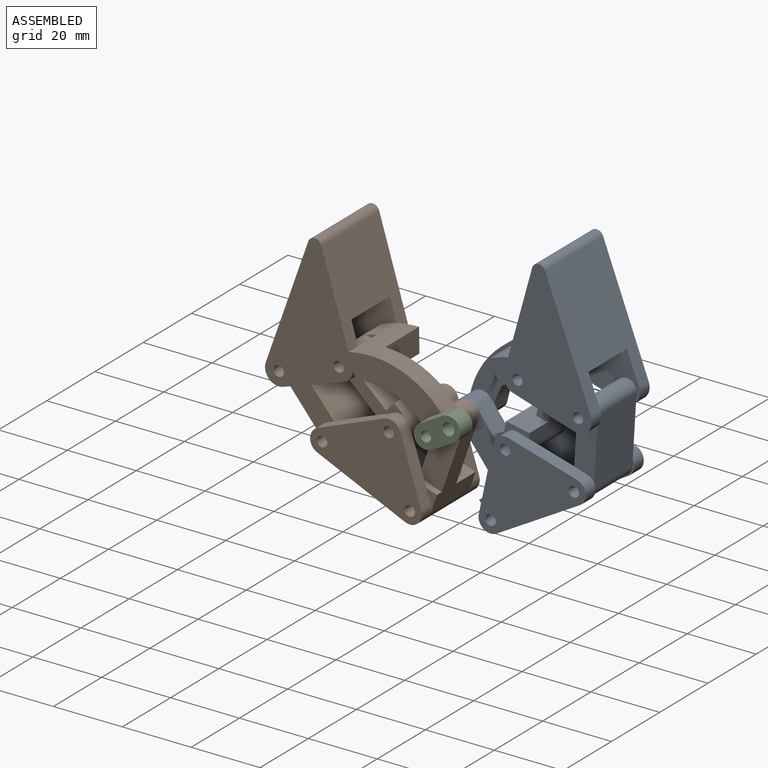
[diagram: assembled view]
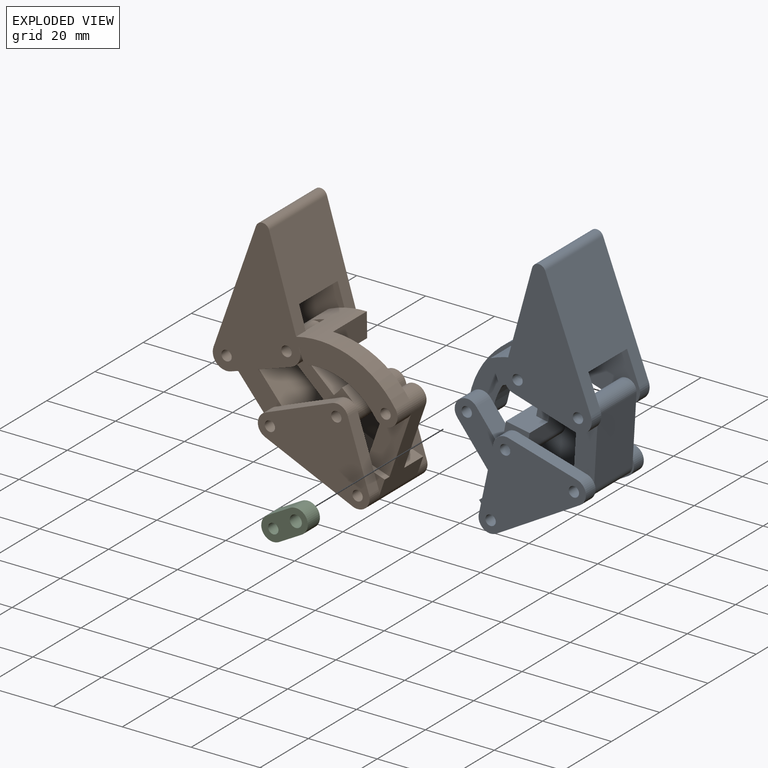
[diagram: exploded view]
GUIDED TOUR — MATED ASSEMBLY WITH SUBASSEMBLIES (Onshape document ed50da4fc6db5b4f06c21525, AutoMate assembly ed50da4fc6db5b4f06c21525_7710ae978911b2642eab048f_40d3b34588bcea5de6abf62f_default)

This assembly has 13 component occurrences arranged in 3 top-level units: 1 individual components plus 2 subassemblies (S0, S1). The tour has two levels: first the top level, where each subassembly is treated as one rigid unit; then each subassembly is toured internally in its own section (nesting deeper than one subassembly level is flattened into its subassembly's section).

Components are labeled P0..P12 across the whole record; subassembly units are labeled S0..S1. A mate is a constraint between two units; its type names the relative motion it leaves free:
  REVOLUTE — leaves rotation about the listed axis free (a hinge).
Axis/direction vectors are unit vectors and 'through' points are millimeter coordinates, both in the assembly's world frame.

TOP-LEVEL MATES (between units; each subassembly's internal mates are listed in its own section)
  1. REVOLUTE "轉動 1": S0 <-> S1, axis (0.000, -1.000, 0.000) through (41.17, 1.14, -53.42) mm
  2. REVOLUTE "轉動 2": P6 <-> S1, axis (0.000, 1.000, 0.000) through (41.17, -10.86, -53.42) mm

TOP-LEVEL ASSEMBLY ORDER
  1. S0 — the base component [order verified]
  2. S1 [order verified]
  3. P6 [order verified]
Order-tag legend:
  [order verified] — this step's position reverses a verified removal order: the component was checked to insert without passing through the ones already placed.

Of the 13 component occurrences, 4 carry the full construction recipe — the FeatureScript program that regenerates the part's solid from scratch; the rest are supplied as boundary geometry only. Each toured unit is shown spotlighted twice — assembled, then exploded with a leader line back to its socket (green = recipe-attached component, orange = geometry-only, blue = subassembly unit; the rest desaturated gray).
NOTE — this tour is split across 2 documents so each fits a 32k-token context. This is document 1: the component sections continue in the remaining 1 document, each repeating the header above.
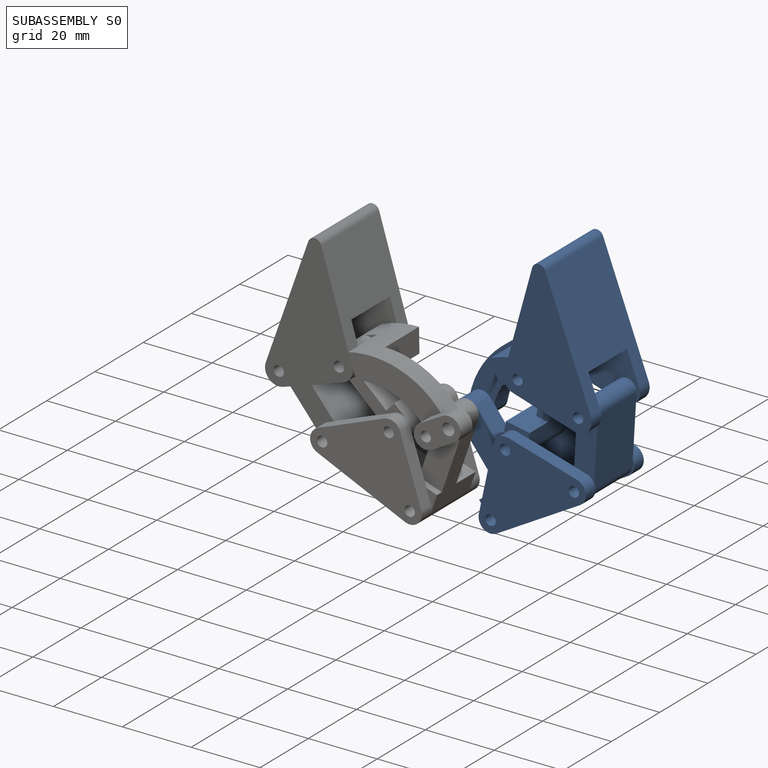
[diagram: subassembly S0 — assembled]
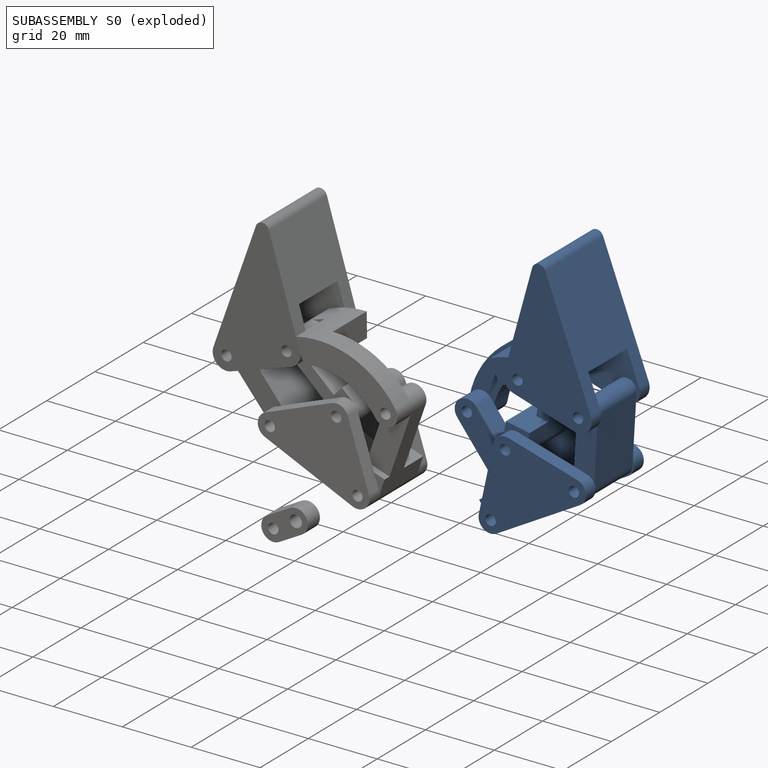
[diagram: subassembly S0 — exploded]
SUBASSEMBLY S0 — 6 components (P0, P1, P4, P5, P7, P11), of which 2 recipe-attached; toured below.
Held by: REVOLUTE mate "轉動 1" to S1.
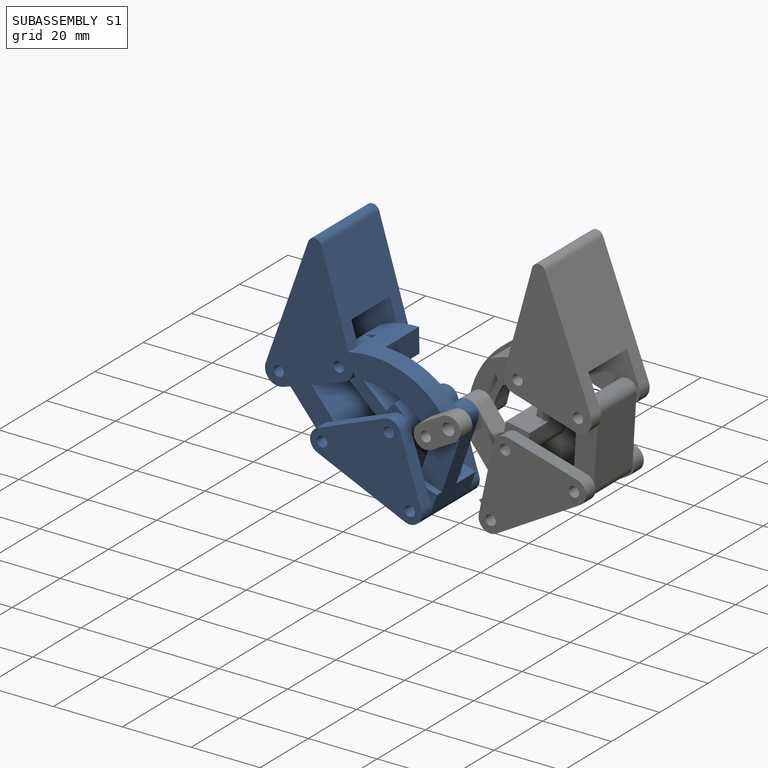
[diagram: subassembly S1 — assembled]
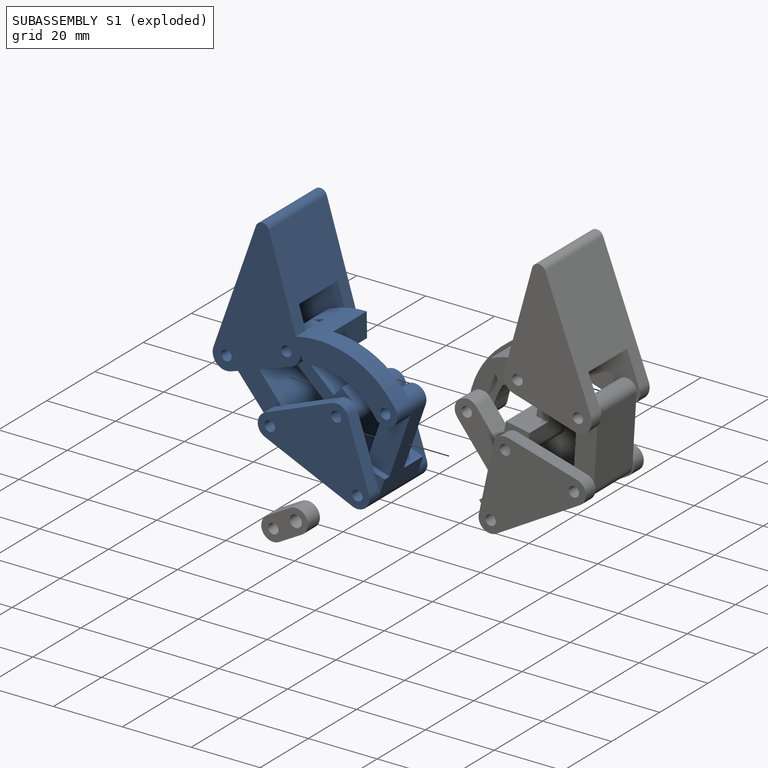
[diagram: subassembly S1 — exploded]
SUBASSEMBLY S1 — 6 components (P2, P3, P8, P9, P10, P12), of which 2 recipe-attached; toured below.
Held by: REVOLUTE mate "轉動 1" to S0; REVOLUTE mate "轉動 2" to P6.
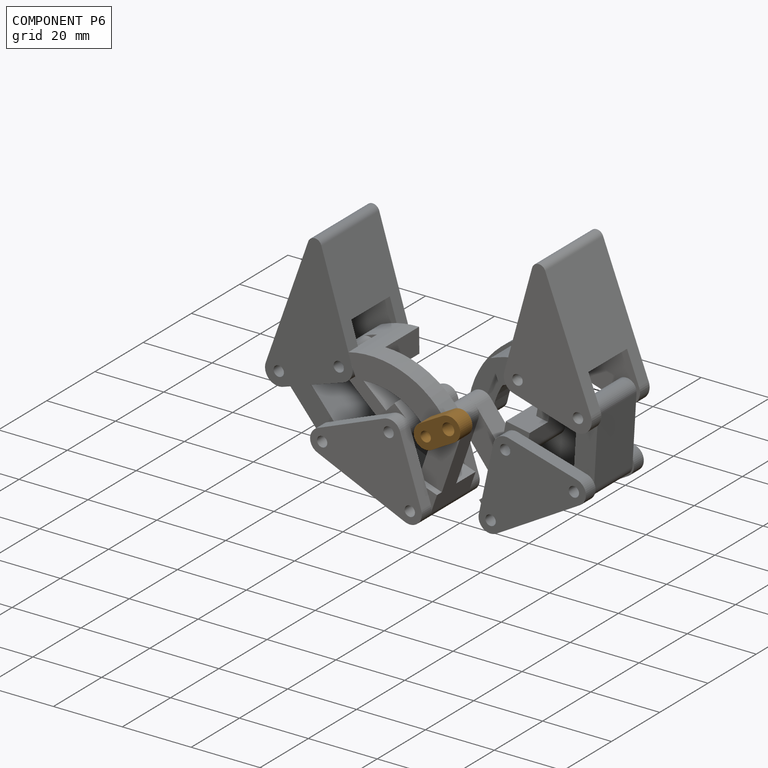
[diagram: component P6 — assembled]
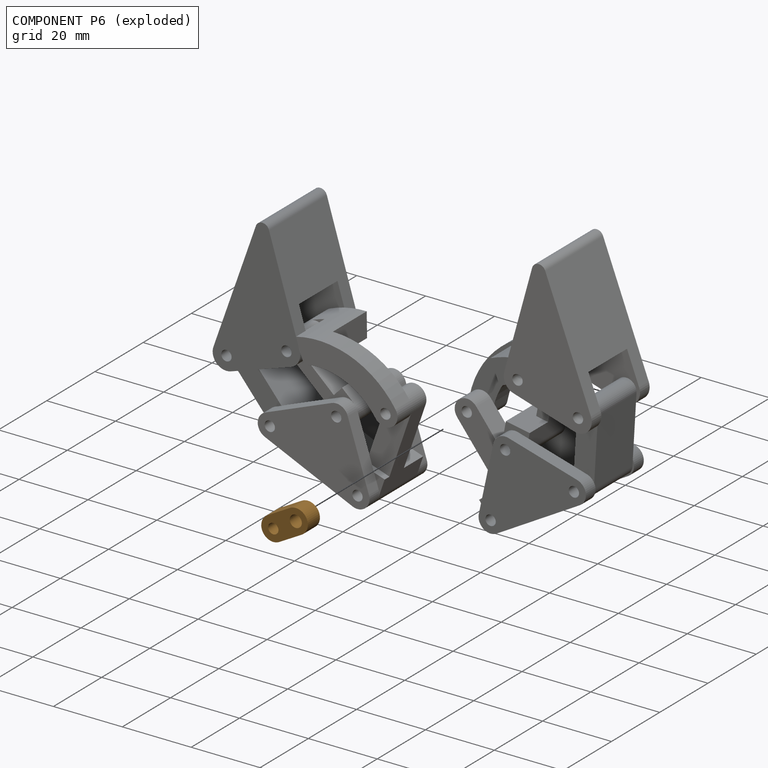
[diagram: component P6 — exploded]
COMPONENT P6 — geometry summary (no construction recipe available for this part):
  bounding box: 14.5 x 7.0 x 5.0 mm
  B-rep topology: 1 solid, 8 faces, 36 edges
  volume: 371 mm^3 (73% of its bounding box)
  symmetry: 2-fold rotationally symmetric about the x axis; mirror-symmetric across its y mid-plane, z mid-plane
Held by: REVOLUTE mate "轉動 2" to P2.
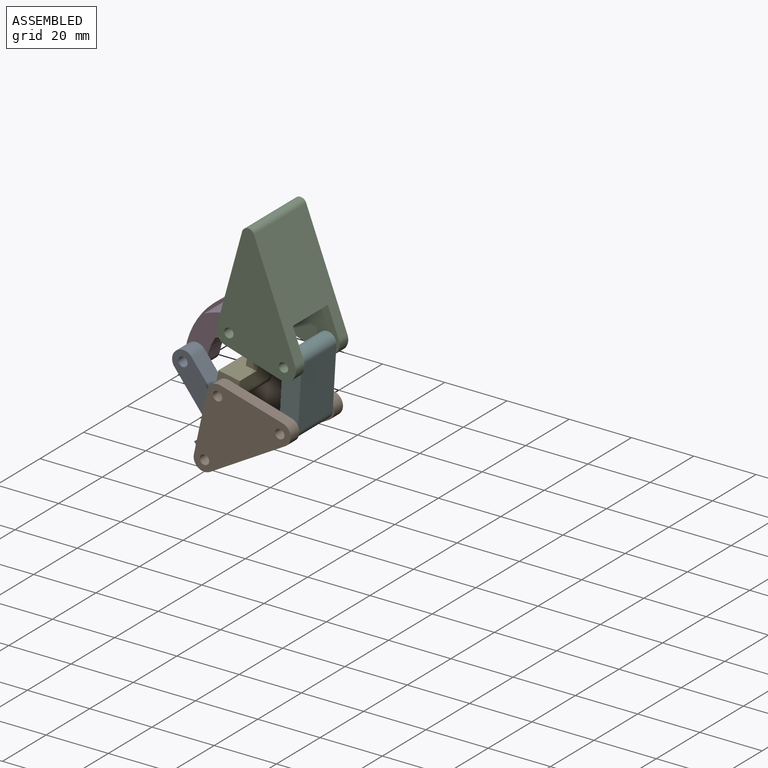
[diagram: subassembly S0 — assembled view]
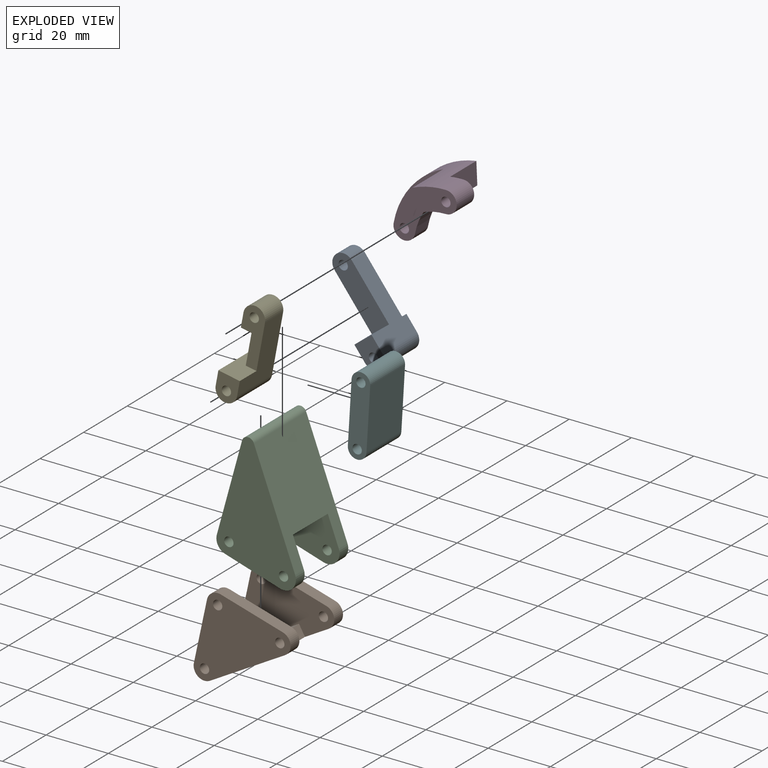
[diagram: subassembly S0 — exploded view]
SUBASSEMBLY S0 TOUR — 6 components, shown here in isolation at its own camera.

INTERNAL MATES
  1. REVOLUTE "轉動 2": P11 <-> P1, axis (0.000, 1.000, 0.000) through (80.68, 9.14, -59.24) mm
  2. REVOLUTE "轉動 3": P0 <-> P1, axis (0.000, 1.000, 0.000) through (56.50, -6.86, -73.17) mm
  3. REVOLUTE "轉動 6": P5 <-> P4, axis (0.000, -1.000, 0.000) through (64.31, -6.86, -34.25) mm
  4. REVOLUTE "轉動 1": P4 <-> P7, axis (0.000, -1.000, 0.000) through (64.31, 9.14, -34.25) mm
  5. REVOLUTE "轉動 5": P7 <-> P1, axis (0.000, -1.000, 0.000) through (60.72, -6.86, -53.57) mm
  6. REVOLUTE "轉動 7": P0 <-> P5, axis (0.000, 1.000, 0.000) through (41.17, 7.14, -53.42) mm
  7. REVOLUTE "轉動 4": P4 <-> P11, axis (0.000, -1.000, 0.000) through (81.87, 9.14, -39.58) mm

ASSEMBLY ORDER (within the subassembly)
  1. P7 — the base component [order verified]
  2. P5 [order verified]
  3. P4 [order verified]
  4. P11 [order verified]
  5. P1 [order verified]
  6. P0 [order verified]
Order-tag legend:
  [order verified] — this step's position reverses a verified removal order: the component was checked to insert without passing through the ones already placed.
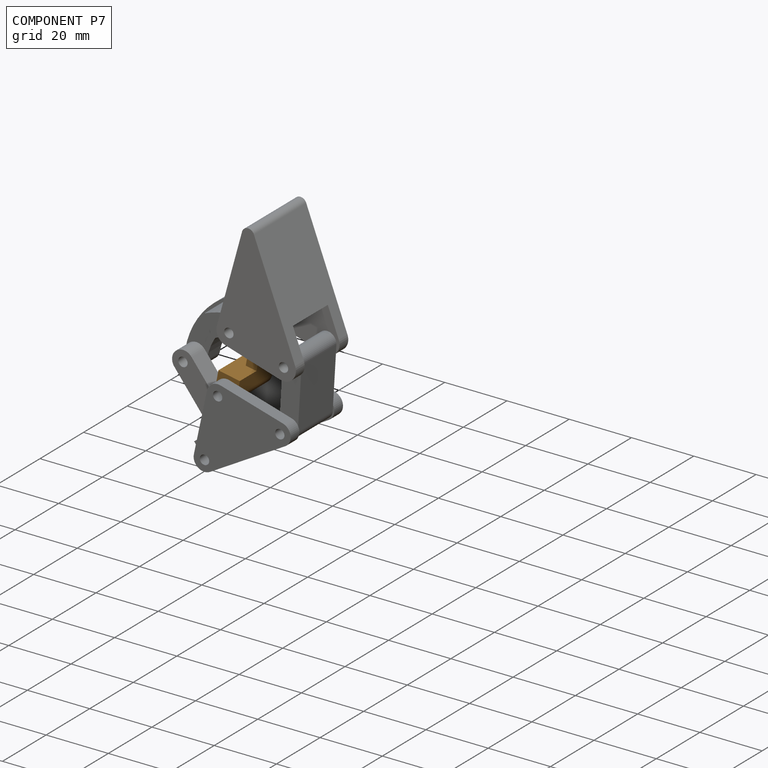
[diagram: component P7 — assembled]
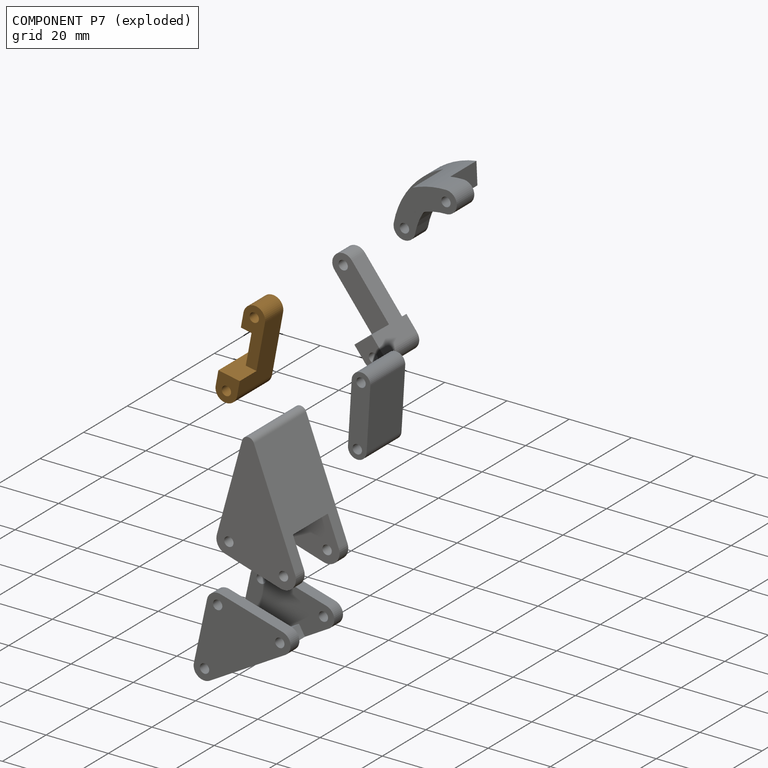
[diagram: component P7 — exploded]
COMPONENT P7 — geometry summary (no construction recipe available for this part):
  bounding box: 26.7 x 16.0 x 7.0 mm
  B-rep topology: 1 solid, 13 faces, 68 edges
  volume: 1402 mm^3 (47% of its bounding box)
Held by: REVOLUTE mate "轉動 1" to P4; REVOLUTE mate "轉動 5" to P1.
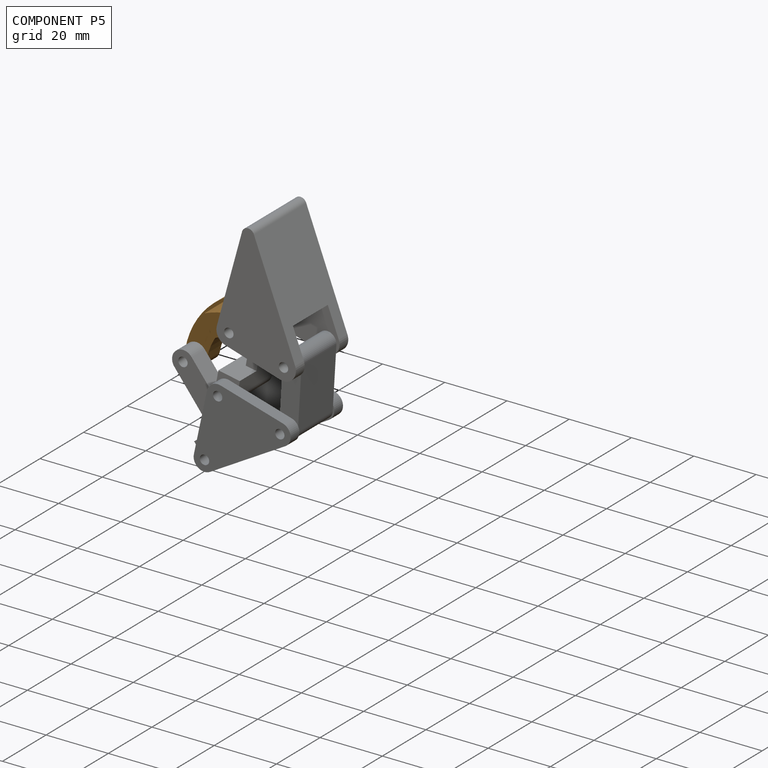
[diagram: component P5 — assembled]
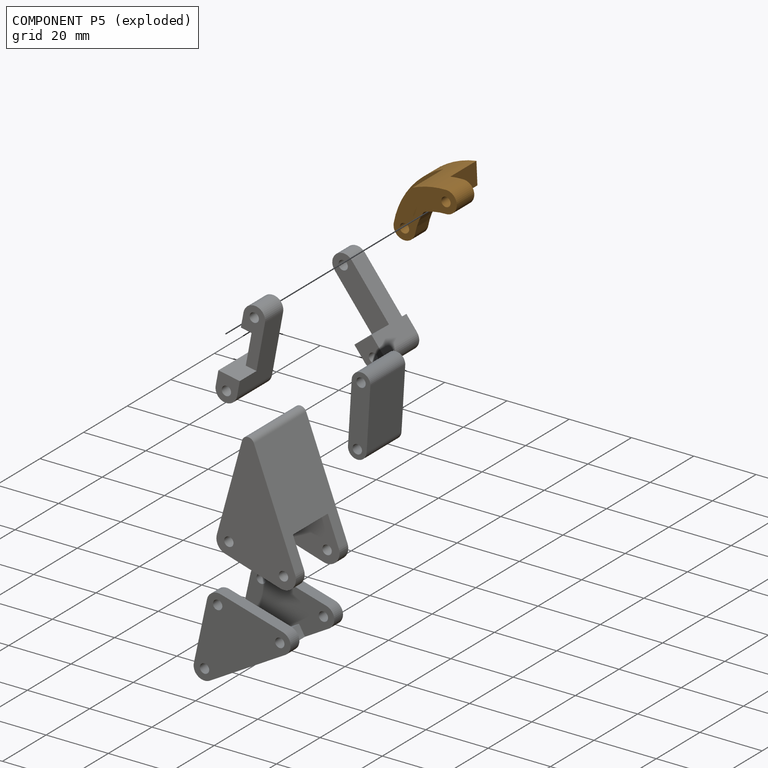
[diagram: component P5 — exploded]
COMPONENT P5 — geometry summary (no construction recipe available for this part):
  bounding box: 37.1 x 20.0 x 12.4 mm
  B-rep topology: 1 solid, 12 faces, 64 edges
  volume: 2139 mm^3 (23% of its bounding box)
Held by: REVOLUTE mate "轉動 6" to P4; REVOLUTE mate "轉動 7" to P0.
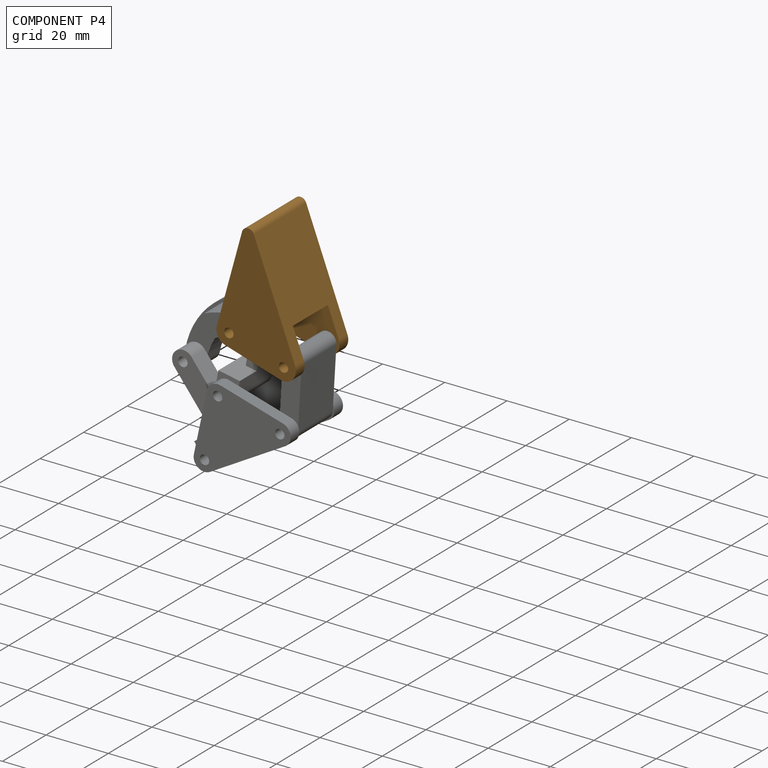
[diagram: component P4 — assembled]
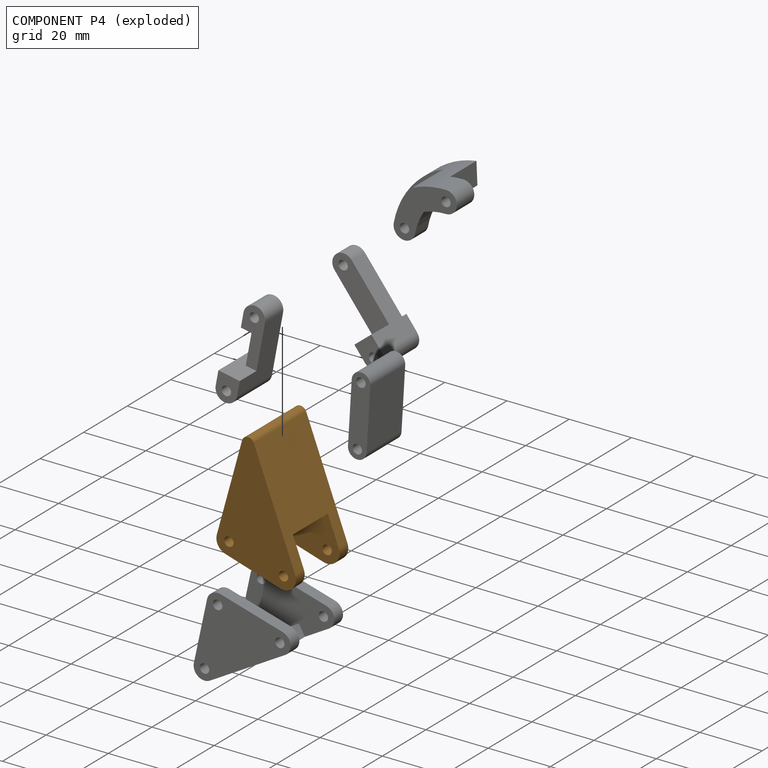
[diagram: component P4 — exploded]
COMPONENT P4 — geometry summary (no construction recipe available for this part):
  bounding box: 36.5 x 27.2 x 24.0 mm
  B-rep topology: 1 solid, 18 faces, 104 edges
  volume: 8675 mm^3 (36% of its bounding box)
  symmetry: mirror-symmetric across its y mid-plane
Held by: REVOLUTE mate "轉動 6" to P5; REVOLUTE mate "轉動 1" to P7; REVOLUTE mate "轉動 4" to P11.
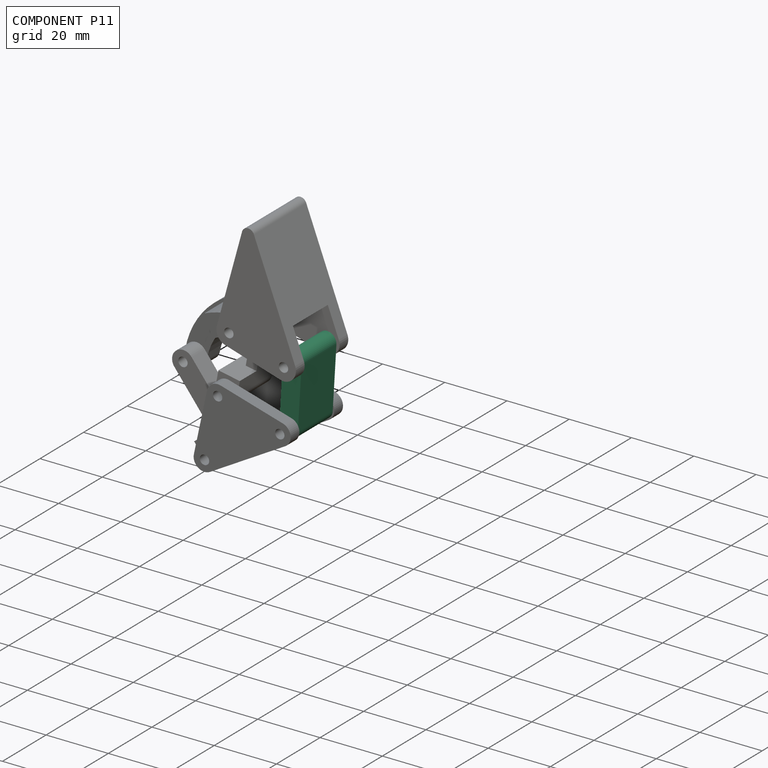
[diagram: component P11 — assembled]
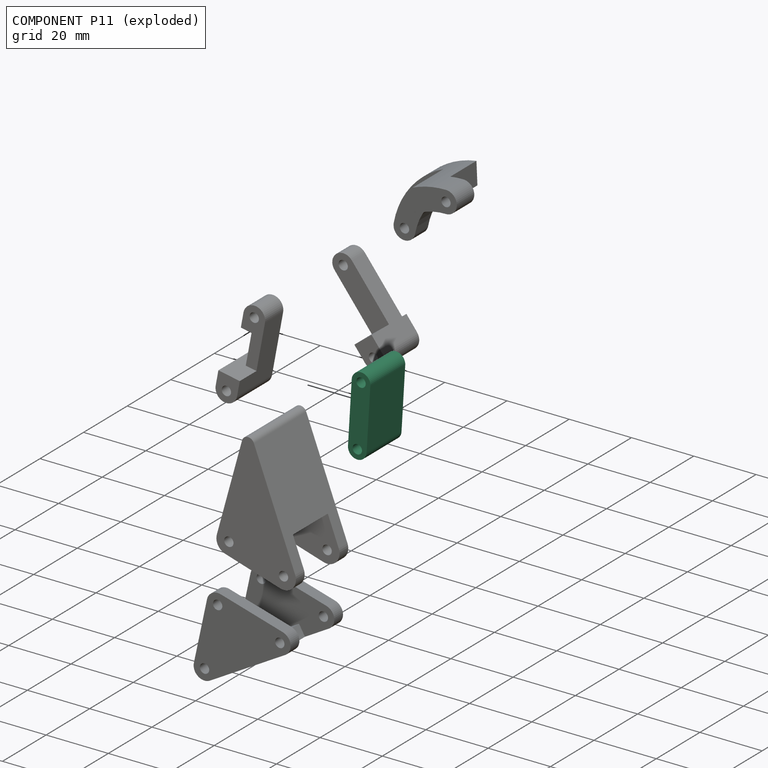
[diagram: component P11 — exploded]
COMPONENT P11 — recipe-attached (CADFS 00900202, mesh-verified: the recipe's output STEP matches this component's geometry to below the mesh-comparison resolution (tessellation chordal tolerance ~0.0463 mm)).
Held by: REVOLUTE mate "轉動 2" to P1; REVOLUTE mate "轉動 4" to P4.
Construction recipe (FeatureScript — the CAD program that rebuilds this solid; sketch coordinates are in the units given by the * unit suffixes, e.g. mm):

FeatureScript 1511;
import(path : "onshape/std/geometry.fs", version : "1511.0");
import(path : "onshape/std/common.fs", version : "1511.0");
const mm = millimeter;
const VERTEX = EntityType.VERTEX;
const EDGE = EntityType.EDGE;
const FACE = EntityType.FACE;
const BODY = EntityType.BODY;
function v(x, y){return vector(x, y);}
function OD(order){return orderDisambiguation(order);}
function OSD(set){return originalSetDisambiguation(set);}
function TD(topology){return topologyDisambiguation(topology);}
function TDD(query){return trueDependencyDisambiguation(query);}
function sQuery(a, b, c) {return sketchEntityQuery(a, b, c);}

annotation { "Feature Type Name" : "Feature", "Feature Type Description" : "" }
export const myFeature = defineFeature(function(context is Context, id is Id, definition is map)
    precondition{}
    {
        {
            var Q0;
            Q0=qCreatedBy(makeId("Front.planeOp"),FACE);
            var sketch = newSketch(context, id + "F0", { "sketchPlane" : qUnion([Q0])});
            skLineSegment(sketch, "E0", {"start": v(-9.85, 0) * mm, "end": v(9.85, 0) * mm});
            skCircle(sketch, "E1", {"center": v(9.85, 0) * mm, "radius": 1.5 * mm});
            skCircle(sketch, "E2", {"center": v(-9.85, 0) * mm, "radius": 1.5 * mm});
            skPoint(sketch, "E3.visualSharp", {"position": v(-66.12, -69.63) * mm});
            skArc(sketch, "E3.filletArc", {"start": v(-51.94, -37.1) * mm, "mid": v(-52.74, -38.3) * mm, "end": v(-51.92, -39.49) * mm});
            skArc(sketch, "E4", {"start": v(-9.85, 3) * mm, "mid": v(-12.85, 0) * mm, "end": v(-9.85, -3) * mm});
            skArc(sketch, "E5", {"start": v(9.85, -3) * mm, "mid": v(12.85, 0) * mm, "end": v(9.85, 3) * mm});
            skLineSegment(sketch, "E6", {"start": v(9.85, 3) * mm, "end": v(-9.85, 3) * mm});
            skLineSegment(sketch, "E7", {"start": v(-9.85, -3) * mm, "end": v(9.85, -3) * mm});
            skSolve(sketch);
        }
        {
            var Q0;
            Q0 = qSketchRegion(id + "F0", true);
            extrude(context, id + "F1", {"entities" : qUnion([Q0]), "endBound" : BoundingType.SYMMETRIC, "depth" : 16 * mm, "offsetDistance" : 25.4 * mm});
        }
    });
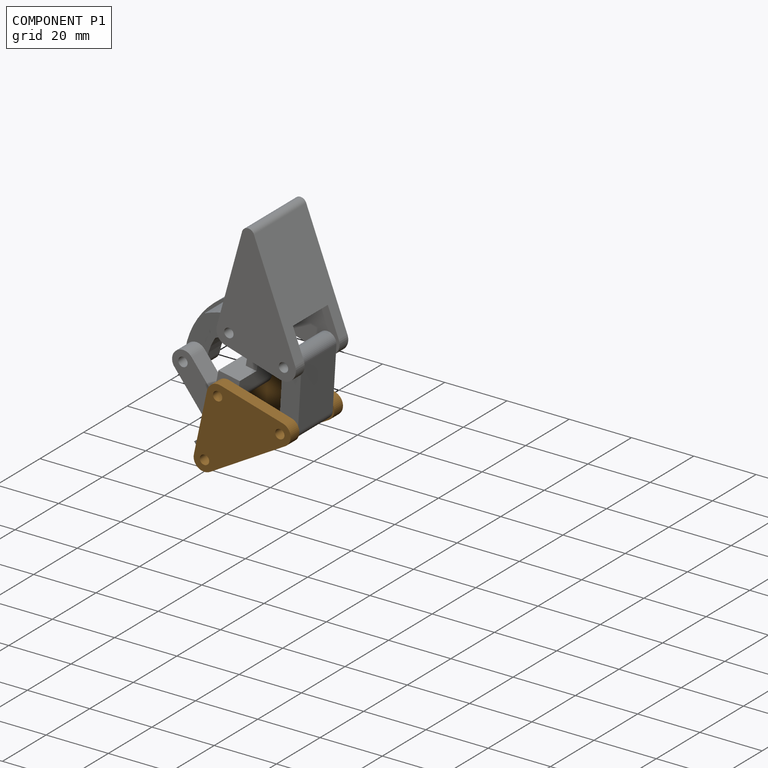
[diagram: component P1 — assembled]
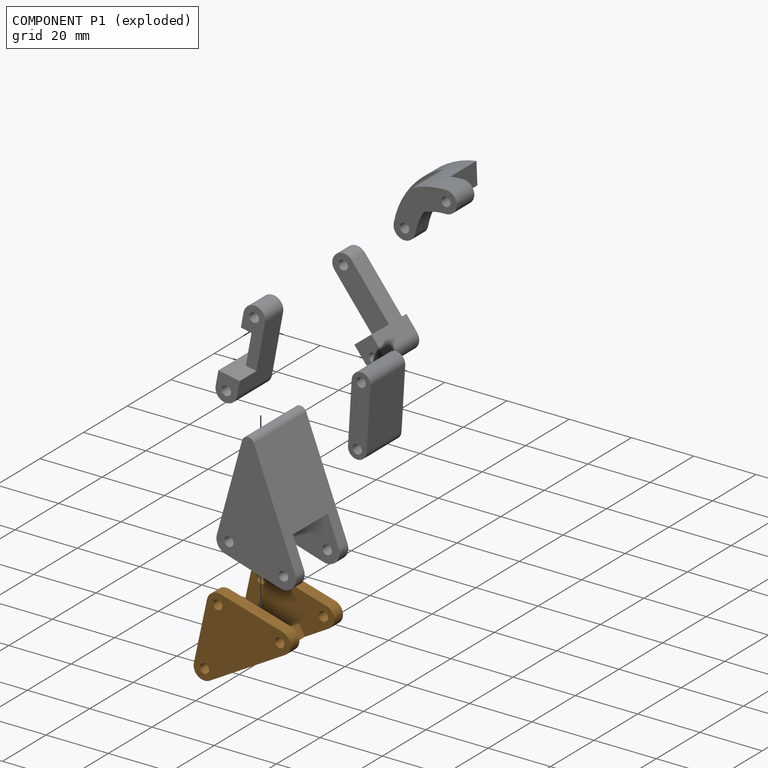
[diagram: component P1 — exploded]
COMPONENT P1 — geometry summary (no construction recipe available for this part):
  bounding box: 27.7 x 27.1 x 24.0 mm
  B-rep topology: 1 solid, 24 faces, 144 edges
  volume: 4419 mm^3 (25% of its bounding box)
  symmetry: mirror-symmetric across its y mid-plane
Held by: REVOLUTE mate "轉動 2" to P11; REVOLUTE mate "轉動 3" to P0; REVOLUTE mate "轉動 5" to P7.
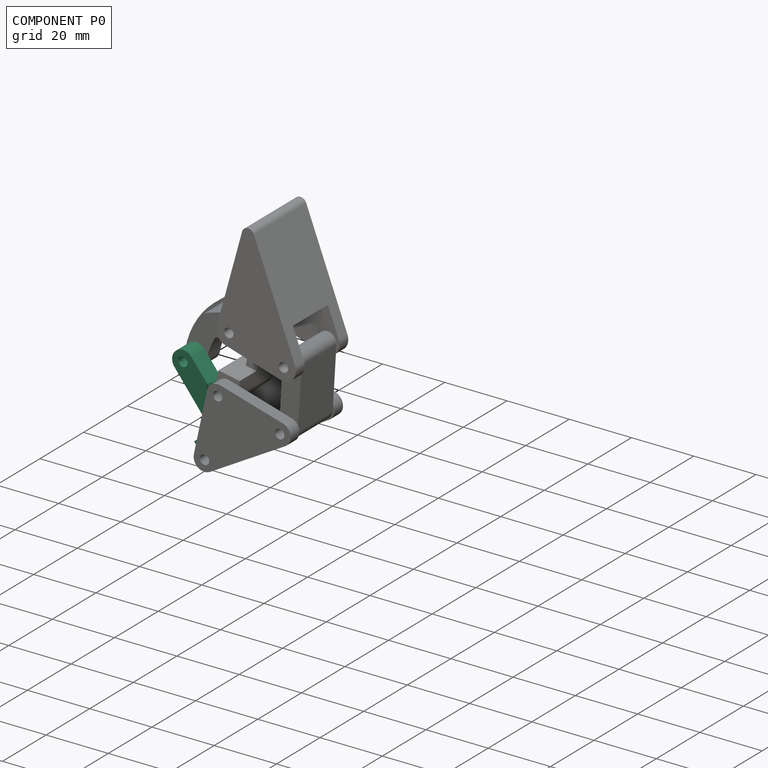
[diagram: component P0 — assembled]
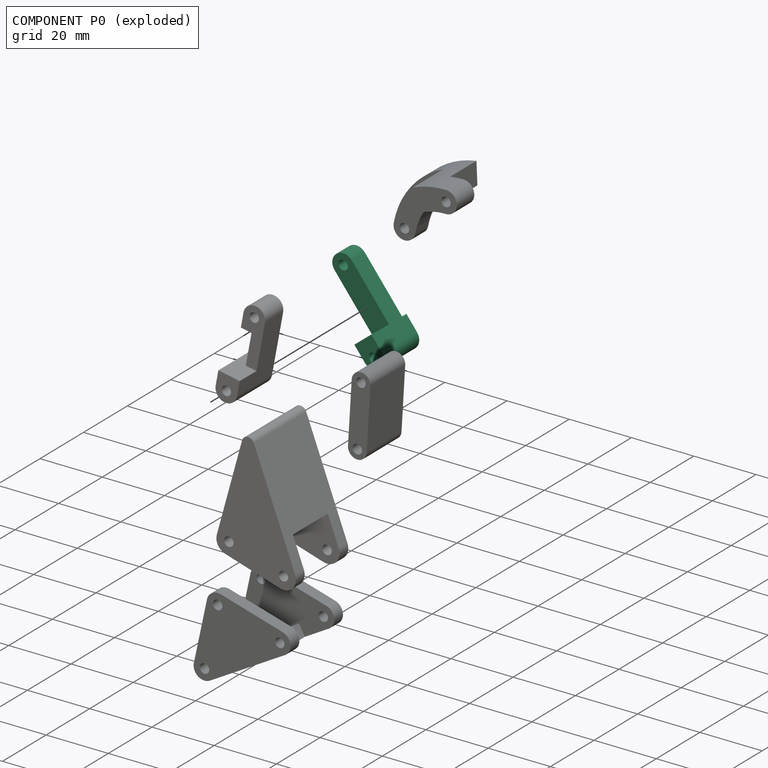
[diagram: component P0 — exploded]
COMPONENT P0 — recipe-attached (CADFS 00900207, mesh-verified: the recipe's output STEP matches this component's geometry to below the mesh-comparison resolution (tessellation chordal tolerance ~0.0547 mm)).
Held by: REVOLUTE mate "轉動 3" to P1; REVOLUTE mate "轉動 7" to P5.
Construction recipe (FeatureScript — the CAD program that rebuilds this solid; sketch coordinates are in the units given by the * unit suffixes, e.g. mm):

FeatureScript 1511;
import(path : "onshape/std/geometry.fs", version : "1511.0");
import(path : "onshape/std/common.fs", version : "1511.0");
const mm = millimeter;
const VERTEX = EntityType.VERTEX;
const EDGE = EntityType.EDGE;
const FACE = EntityType.FACE;
const BODY = EntityType.BODY;
function v(x, y){return vector(x, y);}
function OD(order){return orderDisambiguation(order);}
function OSD(set){return originalSetDisambiguation(set);}
function TD(topology){return topologyDisambiguation(topology);}
function TDD(query){return trueDependencyDisambiguation(query);}
function sQuery(a, b, c) {return sketchEntityQuery(a, b, c);}

annotation { "Feature Type Name" : "Feature", "Feature Type Description" : "" }
export const myFeature = defineFeature(function(context is Context, id is Id, definition is map)
    precondition{}
    {
        {
            var Q0;
            Q0=qCreatedBy(makeId("Front.planeOp"),FACE);
            var sketch = newSketch(context, id + "F0", { "sketchPlane" : qUnion([Q0])});
            skLineSegment(sketch, "E0", {"start": v(-12.5, 0) * mm, "end": v(12.5, 0) * mm});
            skArc(sketch, "E1", {"start": v(-12.5, 3.5) * mm, "mid": v(-16, 0) * mm, "end": v(-12.5, -3.5) * mm});
            skArc(sketch, "E2", {"start": v(12.5, -3.5) * mm, "mid": v(16, 0) * mm, "end": v(12.5, 3.5) * mm});
            skLineSegment(sketch, "E3", {"start": v(12.5, 3.5) * mm, "end": v(-12.5, 3.5) * mm});
            skLineSegment(sketch, "E4", {"start": v(-12.5, -3.5) * mm, "end": v(12.5, -3.5) * mm});
            skCircle(sketch, "E5", {"center": v(-12.5, 0) * mm, "radius": 1.5 * mm});
            skCircle(sketch, "E6", {"center": v(12.5, 0) * mm, "radius": 1.5 * mm});
            skSolve(sketch);
        }
        {
            var Q0;
            Q0 = qSketchRegion(id + "F0", true);
            extrude(context, id + "F1", {"entities" : qUnion([Q0]), "endBound" : BoundingType.SYMMETRIC, "depth" : 16 * mm, "offsetDistance" : 25.4 * mm});
        }
        {
            var Q0;
            Q0=makeQuery(id+"F1.opExtrude","SWEPT_FACE",FACE,{"disambiguationData":[OSD([sQuery(id+"F0.wireOp",EDGE,"E3")])]});
            var sketch = newSketch(context, id + "F2", { "sketchPlane" : qUnion([Q0])});
            skLineSegment(sketch, "E7.bottom", {"start": v(33.74, 21.66) * mm, "end": v(-7, 21.66) * mm});
            skLineSegment(sketch, "E7.top", {"start": v(33.74, 6) * mm, "end": v(-7, 6) * mm});
            skLineSegment(sketch, "E7.left", {"start": v(33.74, 21.66) * mm, "end": v(33.74, 6) * mm});
            skLineSegment(sketch, "E7.right", {"start": v(-7, 21.66) * mm, "end": v(-7, 6) * mm});
            skLineSegment(sketch, "E8.bottom", {"start": v(38.29, -22.4) * mm, "end": v(-7, -22.4) * mm});
            skLineSegment(sketch, "E8.top", {"start": v(38.29, 0) * mm, "end": v(-7, 0) * mm});
            skLineSegment(sketch, "E8.left", {"start": v(38.29, -22.4) * mm, "end": v(38.29, 0) * mm});
            skLineSegment(sketch, "E8.right", {"start": v(-7, -22.4) * mm, "end": v(-7, 0) * mm});
            skSolve(sketch);
        }
        {
            var Q0;
            Q0 = qSketchRegion(id + "F2", true);
            extrude(context, id + "F3", {"entities" : qUnion([Q0]), "operationType" : NewBodyOperationType.REMOVE, "oppositeDirection" : true, "depth" : 25.4 * mm, "offsetDistance" : 25.4 * mm});
        }
    });
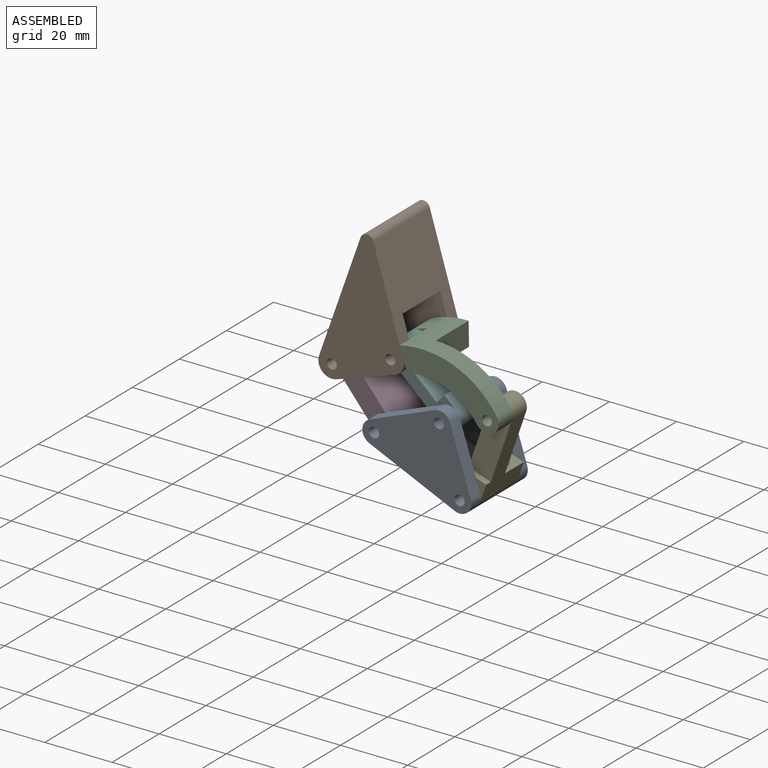
[diagram: subassembly S1 — assembled view]
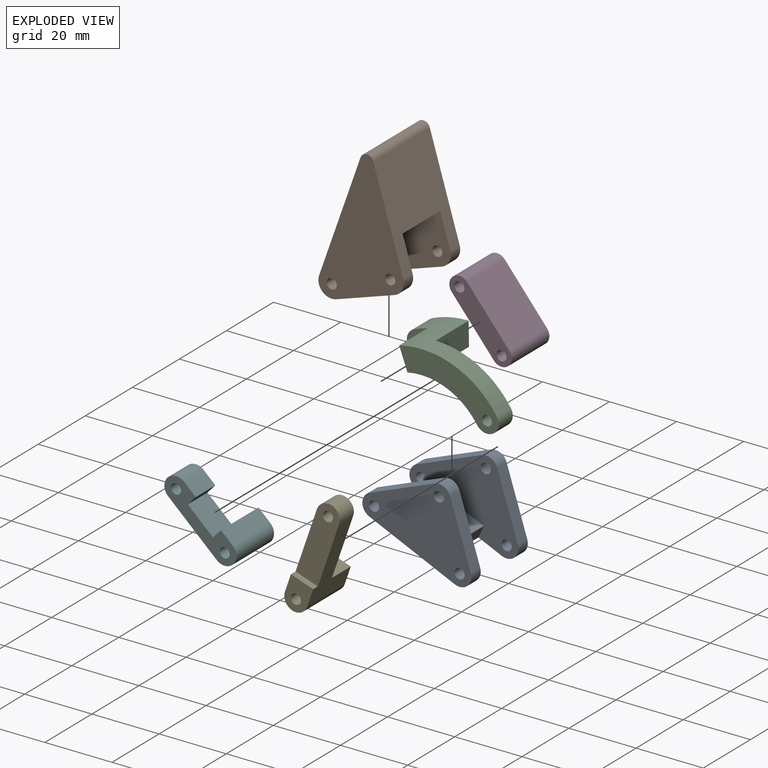
[diagram: subassembly S1 — exploded view]
SUBASSEMBLY S1 TOUR — 6 components, shown here in isolation at its own camera.

INTERNAL MATES
  1. REVOLUTE "轉動 3": P10 <-> P2, axis (0.000, -1.000, 0.000) through (33.05, 9.14, -77.06) mm
  2. REVOLUTE "轉動 1": P3 <-> P12, axis (0.000, 1.000, 0.000) through (12.42, -6.86, -44.68) mm
  3. REVOLUTE "轉動 6": P8 <-> P3, axis (0.000, 1.000, 0.000) through (12.42, 9.14, -44.68) mm
  4. REVOLUTE "轉動 2": P9 <-> P2, axis (0.000, -1.000, 0.000) through (7.59, -6.86, -65.63) mm
  5. REVOLUTE "轉動 5": P12 <-> P2, axis (0.000, 1.000, 0.000) through (26.88, 9.14, -57.98) mm
  6. REVOLUTE "轉動 4": P3 <-> P9, axis (0.000, 1.000, 0.000) through (-4.99, -6.86, -50.48) mm
  7. REVOLUTE "轉動 7": P10 <-> P8, axis (0.000, -1.000, 0.000) through (41.17, -4.86, -53.42) mm

ASSEMBLY ORDER (within the subassembly)
  1. P8 — the base component [order verified]
  2. P12 [order verified]
  3. P9 [order verified]
  4. P3 [order verified]
  5. P2 [order verified]
  6. P10 [order verified]
Order-tag legend:
  [order verified] — this step's position reverses a verified removal order: the component was checked to insert without passing through the ones already placed.
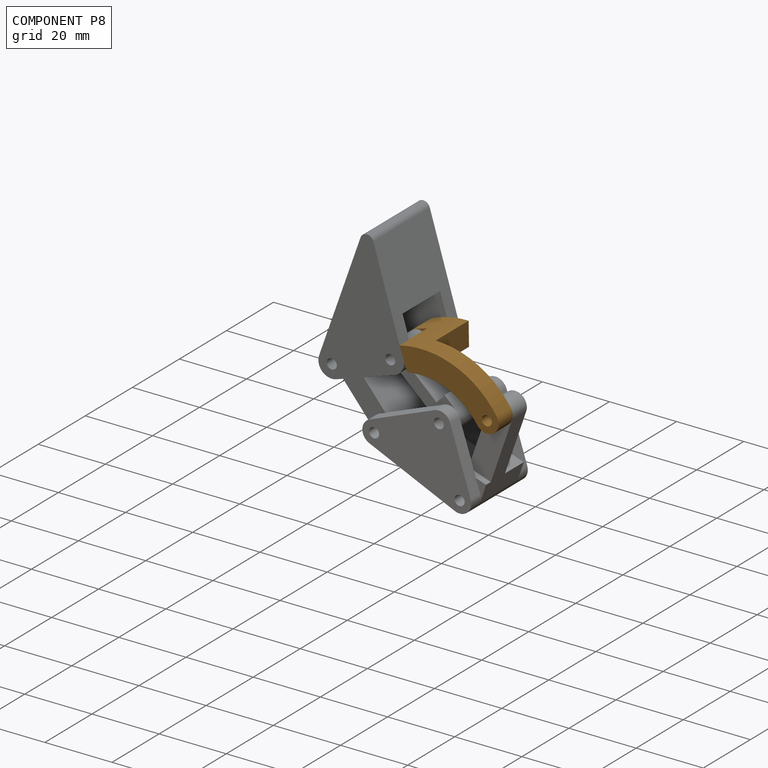
[diagram: component P8 — assembled]
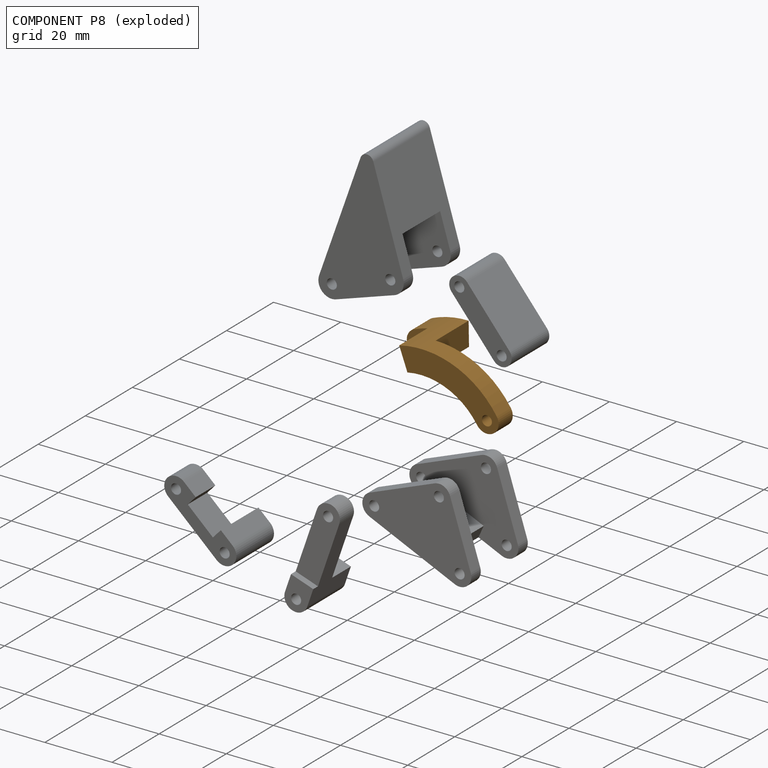
[diagram: component P8 — exploded]
COMPONENT P8 — geometry summary (no construction recipe available for this part):
  bounding box: 37.1 x 20.0 x 12.4 mm
  B-rep topology: 1 solid, 12 faces, 64 edges
  volume: 2139 mm^3 (23% of its bounding box)
Held by: REVOLUTE mate "轉動 6" to P3; REVOLUTE mate "轉動 7" to P10.
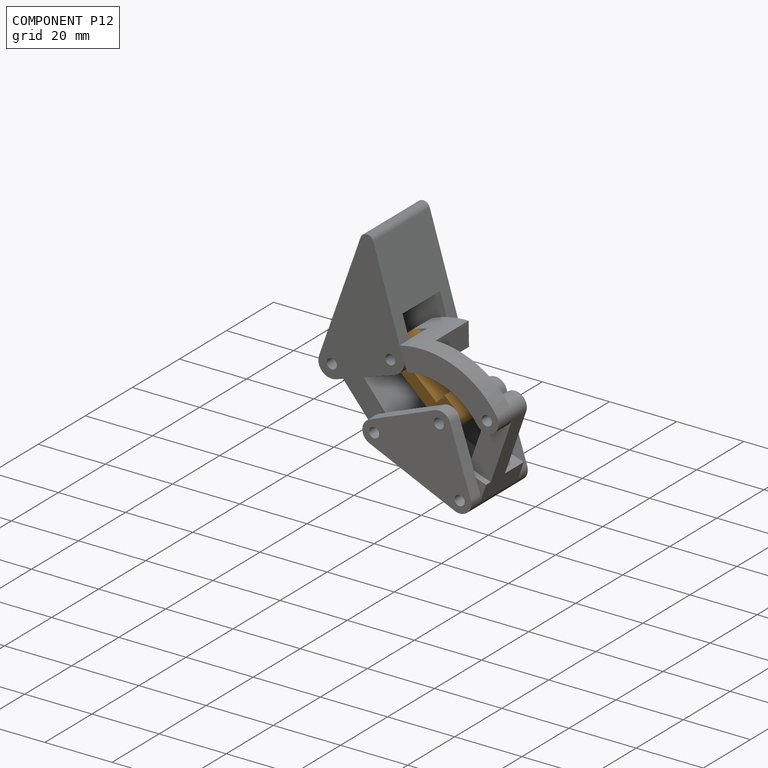
[diagram: component P12 — assembled]
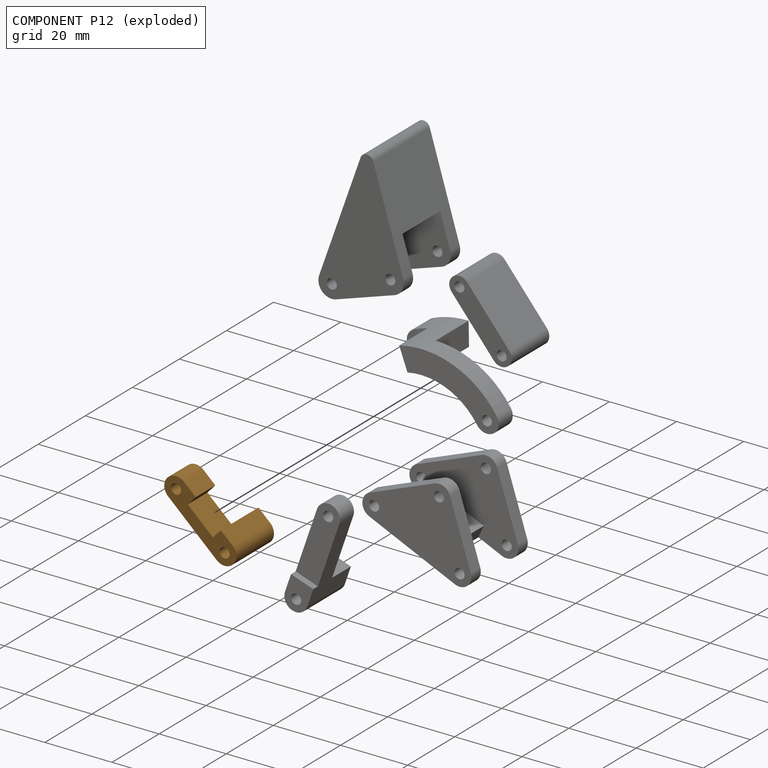
[diagram: component P12 — exploded]
COMPONENT P12 — geometry summary (no construction recipe available for this part):
  bounding box: 26.7 x 16.0 x 7.0 mm
  B-rep topology: 1 solid, 13 faces, 68 edges
  volume: 1402 mm^3 (47% of its bounding box)
Held by: REVOLUTE mate "轉動 1" to P3; REVOLUTE mate "轉動 5" to P2.
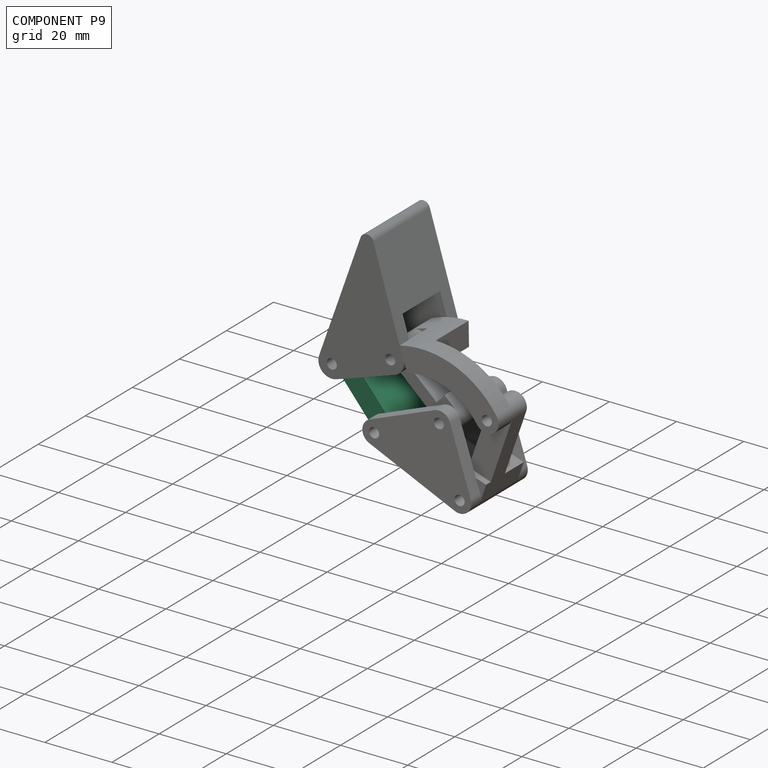
[diagram: component P9 — assembled]
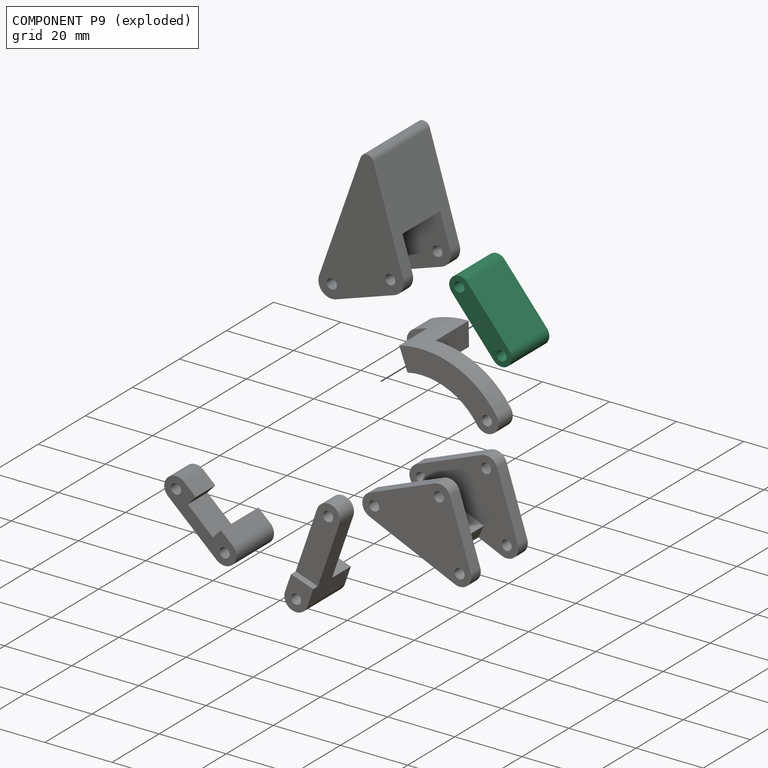
[diagram: component P9 — exploded]
COMPONENT P9 — recipe-attached (CADFS 00900202, mesh-verified: the recipe's output STEP matches this component's geometry to below the mesh-comparison resolution (tessellation chordal tolerance ~0.0463 mm)).
Held by: REVOLUTE mate "轉動 2" to P2; REVOLUTE mate "轉動 4" to P3.
Construction recipe (FeatureScript — the CAD program that rebuilds this solid; sketch coordinates are in the units given by the * unit suffixes, e.g. mm):

FeatureScript 1511;
import(path : "onshape/std/geometry.fs", version : "1511.0");
import(path : "onshape/std/common.fs", version : "1511.0");
const mm = millimeter;
const VERTEX = EntityType.VERTEX;
const EDGE = EntityType.EDGE;
const FACE = EntityType.FACE;
const BODY = EntityType.BODY;
function v(x, y){return vector(x, y);}
function OD(order){return orderDisambiguation(order);}
function OSD(set){return originalSetDisambiguation(set);}
function TD(topology){return topologyDisambiguation(topology);}
function TDD(query){return trueDependencyDisambiguation(query);}
function sQuery(a, b, c) {return sketchEntityQuery(a, b, c);}

annotation { "Feature Type Name" : "Feature", "Feature Type Description" : "" }
export const myFeature = defineFeature(function(context is Context, id is Id, definition is map)
    precondition{}
    {
        {
            var Q0;
            Q0=qCreatedBy(makeId("Front.planeOp"),FACE);
            var sketch = newSketch(context, id + "F0", { "sketchPlane" : qUnion([Q0])});
            skLineSegment(sketch, "E0", {"start": v(-9.85, 0) * mm, "end": v(9.85, 0) * mm});
            skCircle(sketch, "E1", {"center": v(9.85, 0) * mm, "radius": 1.5 * mm});
            skCircle(sketch, "E2", {"center": v(-9.85, 0) * mm, "radius": 1.5 * mm});
            skPoint(sketch, "E3.visualSharp", {"position": v(-66.12, -69.63) * mm});
            skArc(sketch, "E3.filletArc", {"start": v(-51.94, -37.1) * mm, "mid": v(-52.74, -38.3) * mm, "end": v(-51.92, -39.49) * mm});
            skArc(sketch, "E4", {"start": v(-9.85, 3) * mm, "mid": v(-12.85, 0) * mm, "end": v(-9.85, -3) * mm});
            skArc(sketch, "E5", {"start": v(9.85, -3) * mm, "mid": v(12.85, 0) * mm, "end": v(9.85, 3) * mm});
            skLineSegment(sketch, "E6", {"start": v(9.85, 3) * mm, "end": v(-9.85, 3) * mm});
            skLineSegment(sketch, "E7", {"start": v(-9.85, -3) * mm, "end": v(9.85, -3) * mm});
            skSolve(sketch);
        }
        {
            var Q0;
            Q0 = qSketchRegion(id + "F0", true);
            extrude(context, id + "F1", {"entities" : qUnion([Q0]), "endBound" : BoundingType.SYMMETRIC, "depth" : 16 * mm, "offsetDistance" : 25.4 * mm});
        }
    });
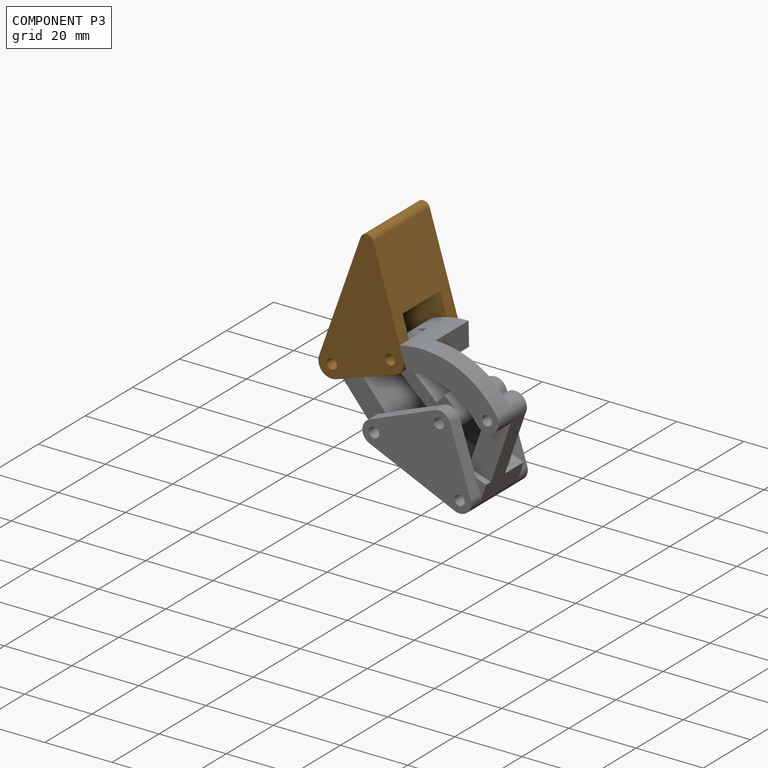
[diagram: component P3 — assembled]
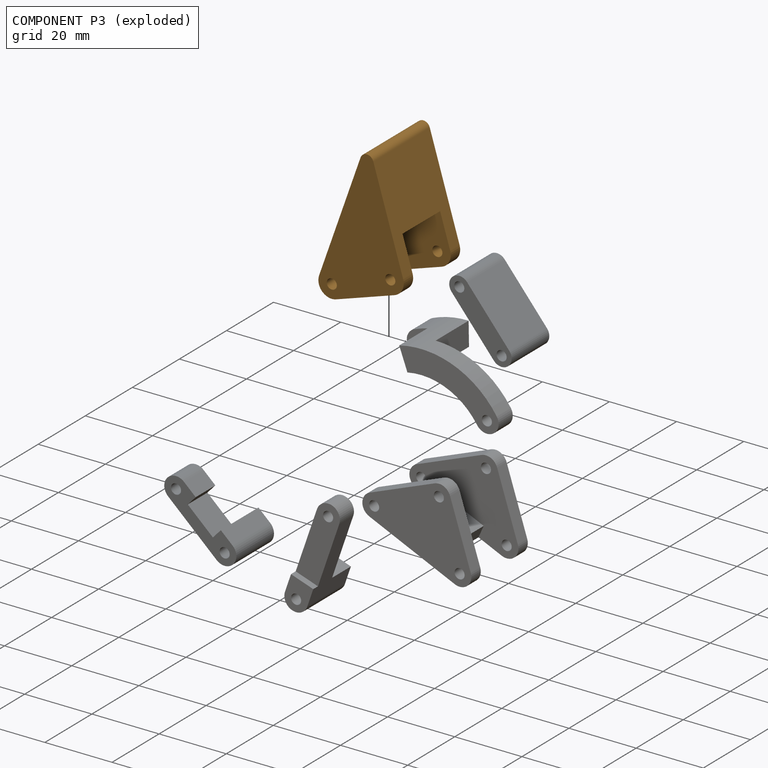
[diagram: component P3 — exploded]
COMPONENT P3 — geometry summary (no construction recipe available for this part):
  bounding box: 36.5 x 27.2 x 24.0 mm
  B-rep topology: 1 solid, 18 faces, 104 edges
  volume: 8675 mm^3 (36% of its bounding box)
  symmetry: mirror-symmetric across its y mid-plane
Held by: REVOLUTE mate "轉動 1" to P12; REVOLUTE mate "轉動 6" to P8; REVOLUTE mate "轉動 4" to P9.
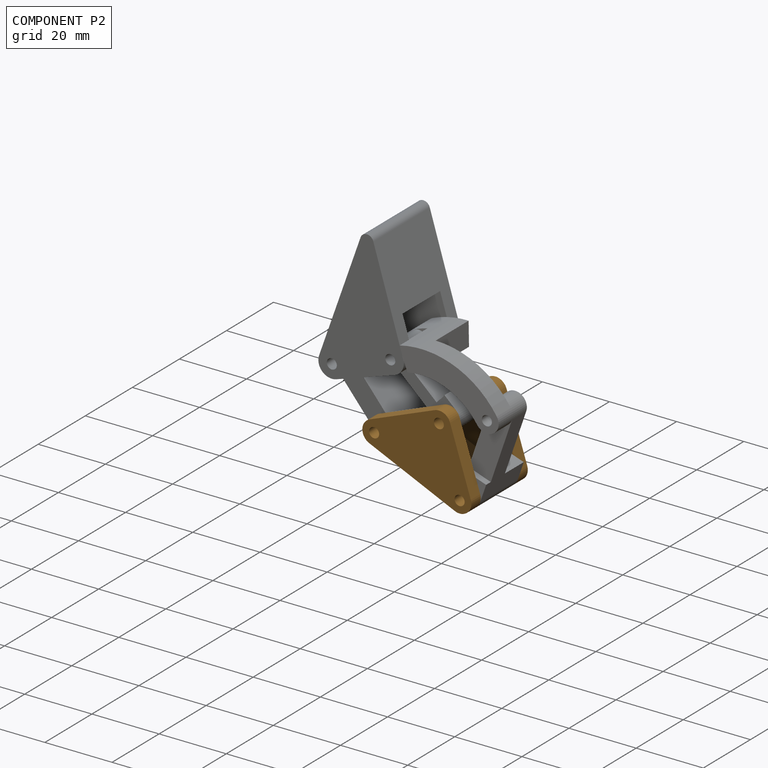
[diagram: component P2 — assembled]
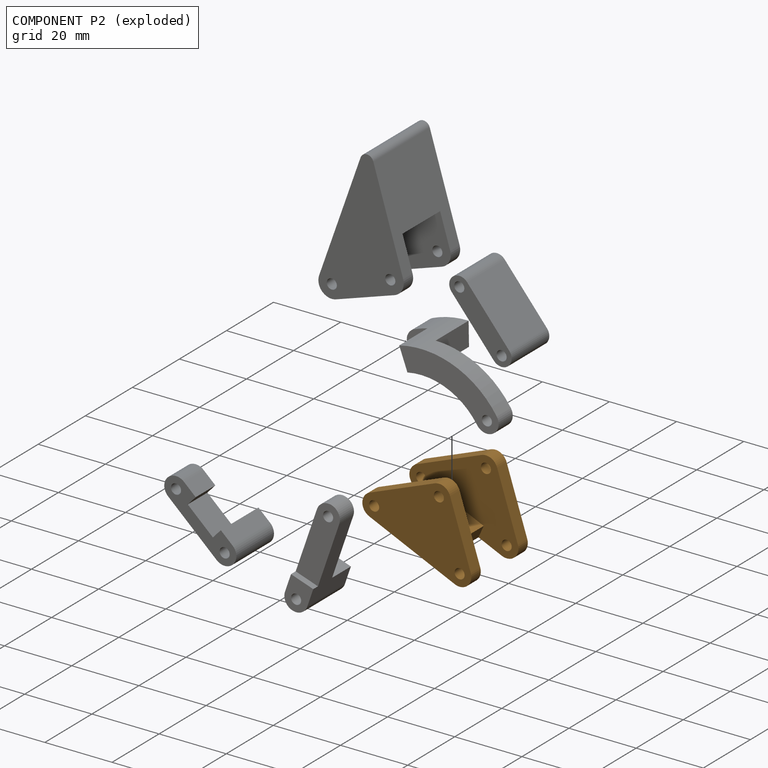
[diagram: component P2 — exploded]
COMPONENT P2 — geometry summary (no construction recipe available for this part):
  bounding box: 27.7 x 27.1 x 24.0 mm
  B-rep topology: 1 solid, 24 faces, 144 edges
  volume: 4419 mm^3 (25% of its bounding box)
  symmetry: mirror-symmetric across its y mid-plane
Held by: REVOLUTE mate "轉動 3" to P10; REVOLUTE mate "轉動 2" to P9; REVOLUTE mate "轉動 5" to P12.
